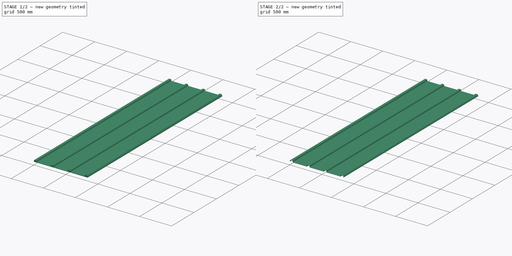
[diagram: build sequence overview — one tinted view per stage of 2, left to right]
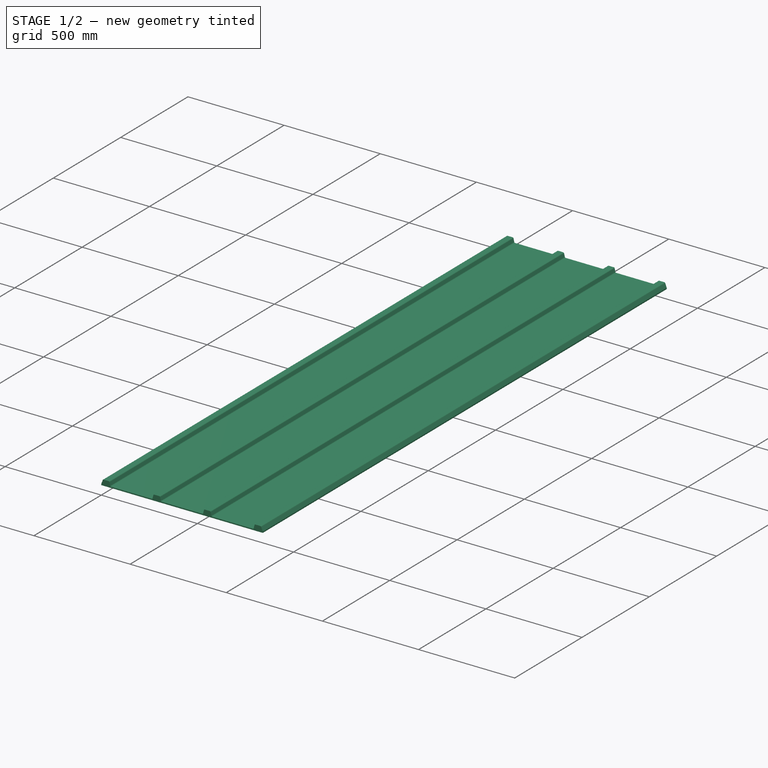
[diagram: stage 1 of 2 — iso view after this stage's code; geometry added in this stage tinted green]
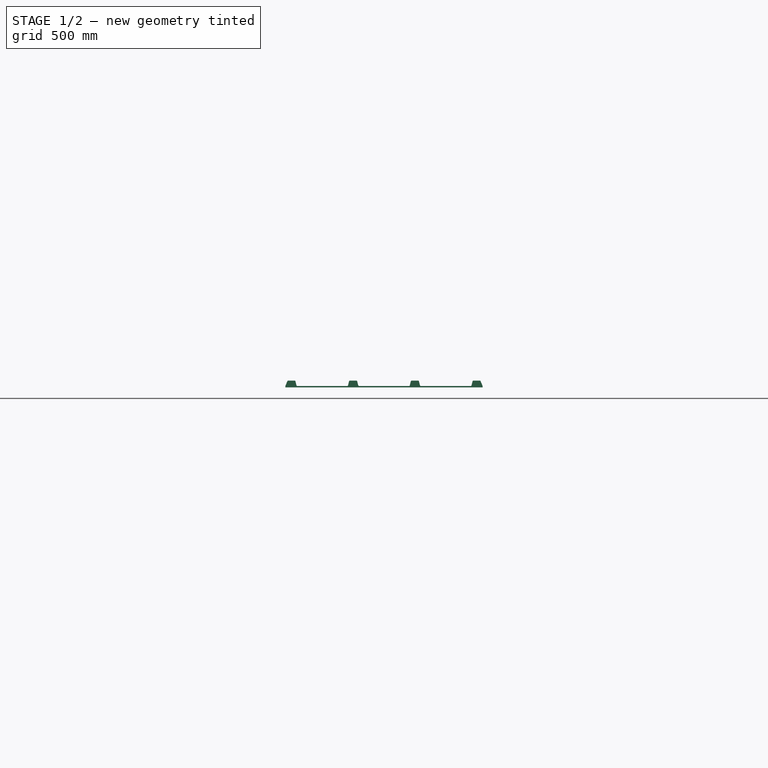
[diagram: stage 1 of 2 — front view after this stage's code; geometry added in this stage tinted green]
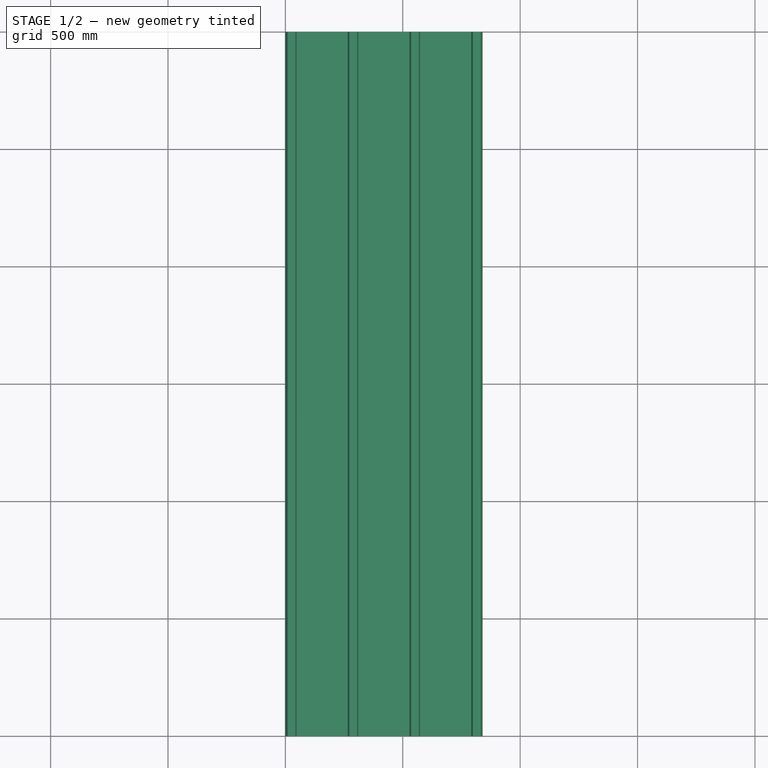
[diagram: stage 1 of 2 — top view after this stage's code; geometry added in this stage tinted green]
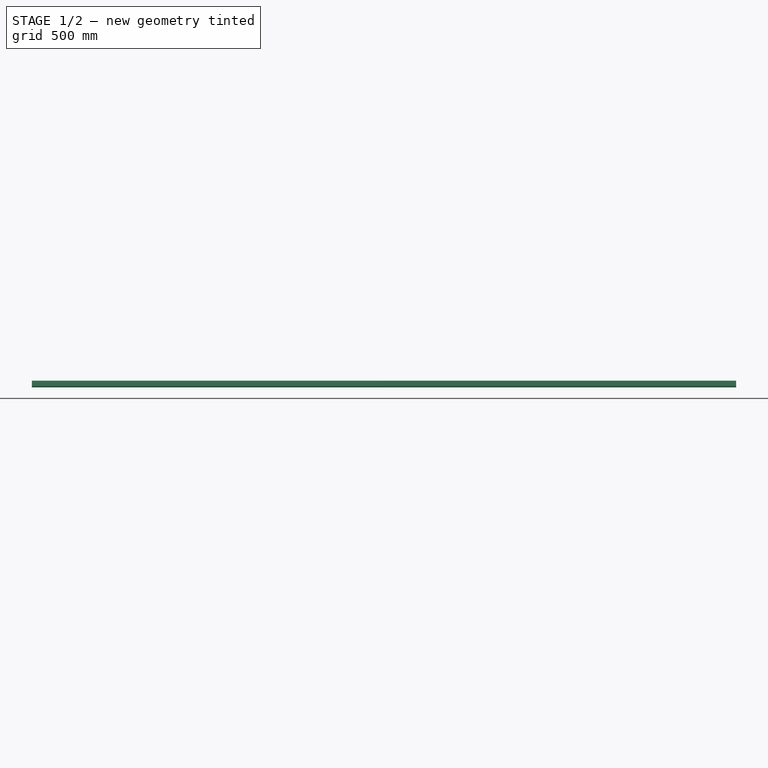
[diagram: stage 1 of 2 — right view after this stage's code; geometry added in this stage tinted green]
FCSTD DOCUMENT  (FreeCAD 0.15R4671 (Git))
Label: bac-acier
License: All rights reserved
LicenseURL: http://en.wikipedia.org/wiki/All_rights_reserved
objects: Sketcher::SketchObject×2, PartDesign::Pad×2, Part::Cut×1
note: 7 computed .brp shape members not serialized (recipe doc carries the construction recipe); baked Part::Feature solids carry a one-line shape summary decoded from their .brp

FEATURE [Sketcher::SketchObject] Sketch
  Placement = pos=(0,0,0) rot=(-1,0,0;4.71239rad)
  sketch-geometry (32):
    g0: LineSegment StartX=0 StartY=2 StartZ=0 EndX=8.29185 EndY=22.4999 EndZ=0
    g1: LineSegment StartX=12 StartY=25 StartZ=0 EndX=39 EndY=25 EndZ=0
    g2: LineSegment StartX=42.8804 StartY=21.971 StartZ=0 EndX=47.1196 EndY=5.02904 EndZ=0
    g3: LineSegment StartX=0 StartY=2 StartZ=0 EndX=0 EndY=-2 EndZ=0
    g4: ArcOfCircle CenterX=12 CenterY=21 CenterZ=0 NormalX=0 NormalY=0 NormalZ=1 Radius=4 StartAngle=1.5708 EndAngle=2.75723
    g5: ArcOfCircle CenterX=39 CenterY=21 CenterZ=0 NormalX=0 NormalY=0 NormalZ=1 Radius=4 StartAngle=0.245189 EndAngle=1.5708
    g6: LineSegment StartX=51 StartY=2 StartZ=0 EndX=263 EndY=2 EndZ=0
    g7: ArcOfCircle CenterX=51 CenterY=6 CenterZ=0 NormalX=0 NormalY=0 NormalZ=1 Radius=4 StartAngle=3.38678 EndAngle=4.71239
    g8: LineSegment StartX=266.88 StartY=5.02904 StartZ=0 EndX=271.12 EndY=21.971 EndZ=0
    g9: LineSegment StartX=275 StartY=25 StartZ=0 EndX=302 EndY=25 EndZ=0
    g10: LineSegment StartX=305.88 StartY=21.971 StartZ=0 EndX=310.12 EndY=5.02904 EndZ=0
    g11: LineSegment StartX=314 StartY=2 StartZ=0 EndX=526 EndY=2 EndZ=0
    g12: ArcOfCircle CenterX=263 CenterY=6 CenterZ=0 NormalX=0 NormalY=0 NormalZ=1 Radius=4 StartAngle=4.71239 EndAngle=6.038
    g13: ArcOfCircle CenterX=275 CenterY=21 CenterZ=0 NormalX=0 NormalY=0 NormalZ=1 Radius=4 StartAngle=1.5708 EndAngle=2.8964
    g14: ArcOfCircle CenterX=302 CenterY=21 CenterZ=0 NormalX=0 NormalY=0 NormalZ=1 Radius=4 StartAngle=0.245189 EndAngle=1.5708
    g15: ArcOfCircle CenterX=314 CenterY=6 CenterZ=0 NormalX=0 NormalY=0 NormalZ=1 Radius=4 StartAngle=3.38678 EndAngle=4.71239
    g16: LineSegment StartX=529.88 StartY=5.02904 StartZ=0 EndX=534.12 EndY=21.971 EndZ=0
    g17: LineSegment StartX=538 StartY=25 StartZ=0 EndX=565 EndY=25 EndZ=0
    g18: LineSegment StartX=568.88 StartY=21.971 StartZ=0 EndX=573.12 EndY=5.02904 EndZ=0
    g19: LineSegment StartX=577 StartY=2 StartZ=0 EndX=789 EndY=2 EndZ=0
    g20: ArcOfCircle CenterX=526 CenterY=6 CenterZ=0 NormalX=0 NormalY=0 NormalZ=1 Radius=4 StartAngle=4.71239 EndAngle=6.038
    g21: ArcOfCircle CenterX=538 CenterY=21 CenterZ=0 NormalX=0 NormalY=0 NormalZ=1 Radius=4 StartAngle=1.5708 EndAngle=2.8964
    g22: ArcOfCircle CenterX=565 CenterY=21 CenterZ=0 NormalX=0 NormalY=0 NormalZ=1 Radius=4 StartAngle=0.245189 EndAngle=1.5708
    g23: ArcOfCircle CenterX=577 CenterY=6 CenterZ=0 NormalX=0 NormalY=0 NormalZ=1 Radius=4 StartAngle=3.38678 EndAngle=4.71239
    g24: LineSegment StartX=792.88 StartY=5.02904 StartZ=0 EndX=797.12 EndY=21.971 EndZ=0
    g25: LineSegment StartX=801 StartY=25 StartZ=0 EndX=828 EndY=25 EndZ=0
    g26: LineSegment StartX=831.708 StartY=22.4999 StartZ=0 EndX=840 EndY=2 EndZ=0
    g27: ArcOfCircle CenterX=828 CenterY=21 CenterZ=0 NormalX=0 NormalY=0 NormalZ=1 Radius=4 StartAngle=0.384365 EndAngle=1.5708
    g28: ArcOfCircle CenterX=801 CenterY=21 CenterZ=0 NormalX=0 NormalY=0 NormalZ=1 Radius=4 StartAngle=1.5708 EndAngle=2.8964
    g29: ArcOfCircle CenterX=789 CenterY=6 CenterZ=0 NormalX=0 NormalY=0 NormalZ=1 Radius=4 StartAngle=4.71239 EndAngle=6.038
    g30: LineSegment StartX=840 StartY=2 StartZ=0 EndX=840 EndY=-2 EndZ=0
    g31: LineSegment StartX=840 StartY=-2 StartZ=0 EndX=0 EndY=-2 EndZ=0
  constraints (82):
    c: PointOnObject(g0,g-2)
    c: Horizontal(g1)
    c: Coincident(g3,g0)
    c: Vertical(g3)
    c: DistanceY(g-1,g0) = 2
    c: Tangent(g0,g4) = 1.5708
    c: Tangent(g1,g4) = 1.5708
    c: Radius(g4) = 4
    c: Tangent(g1,g5) = 1.5708
    c: Tangent(g2,g5) = 1.5708
    c: Equal(g4,g5)
    c: DistanceX(g0,g4) = 12
    c: Horizontal(g6)
    c: Tangent(g2,g7) = -1.5708
    c: Tangent(g6,g7) = -1.5708
    c: Equal(g7,g4)
    c: DistanceX(g5,g7) = 12
    c: DistanceX(g4,g5) = 27
    c: DistanceY(g-1,g4) = 21
    c: DistanceY(g-1,g7) = 6
    c: Horizontal(g9)
    c: Horizontal(g11)
    c: Tangent(g6,g12) = -1.5708
    c: Tangent(g8,g12) = -1.5708
    c: Tangent(g8,g13) = 1.5708
    c: Tangent(g9,g13) = 1.5708
    c: Tangent(g9,g14) = 1.5708
    c: Tangent(g10,g14) = 1.5708
    c: Tangent(g10,g15) = -1.5708
    c: Tangent(g11,g15) = -1.5708
    c: Equal(g12,g13)
    c: Equal(g13,g14)
    c: Equal(g14,g15)
    c: Equal(g15,g4)
    c: DistanceX(g12,g13) = 12
    c: DistanceX(g14,g15) = 12
    c: DistanceX(g13,g14) = 27
    c: DistanceY(g-1,g13) = 21
    c: DistanceY(g-1,g15) = 6
    c: DistanceX(g7,g12) = 212
    c: Horizontal(g17)
    c: Horizontal(g19)
    c: Tangent(g11,g20) = -1.5708
    c: Tangent(g16,g20) = -1.5708
    c: Tangent(g16,g21) = 1.5708
    c: Tangent(g17,g21) = 1.5708
    c: Tangent(g17,g22) = 1.5708
    c: Tangent(g18,g22) = 1.5708
    c: Tangent(g18,g23) = -1.5708
    c: Tangent(g19,g23) = -1.5708
    c: Equal(g20,g21)
    c: Equal(g21,g22)
    c: Equal(g22,g23)
    c: Equal(g23,g4)
    c: DistanceX(g15,g20) = 212
    c: DistanceX(g20,g21) = 12
    c: DistanceX(g22,g23) = 12
    c: DistanceY(g-1,g21) = 21
    c: DistanceY(g-1,g23) = 6
    c: DistanceX(g21,g22) = 27
    c: Horizontal(g25)
    c: Tangent(g25,g27) = 1.5708
    c: Tangent(g26,g27) = 1.5708
    c: Tangent(g24,g28) = 1.5708
    c: Tangent(g25,g28) = 1.5708
    c: Tangent(g19,g29) = -1.5708
    c: Tangent(g24,g29) = -1.5708
    c: Equal(g28,g27)
    c: Equal(g27,g29)
    c: Equal(g29,g4)
    c: DistanceX(g23,g29) = 212
    c: DistanceY(g-1,g28) = 21
    c: DistanceX(g28,g29) = -12
    c: DistanceX(g28,g27) = 27
    c: DistanceY(g-1,g26) = 2
    c: Vertical(g30)
    c: Coincident(g26,g30)
    c: Coincident(g31,g3)
    c: Horizontal(g31)
    c: DistanceY(g3,g0) = 4
    c: Coincident(g30,g31)
    c: DistanceX(g27,g26) = 12
FEATURE [PartDesign::Pad] Pad
  Length = 3000
  Length2 = 100
  Placement = pos=(0,0,0) rot=(-1,0,0;4.71239rad)
  Sketch = -> Sketch
  Type = 0
FEATURE [Sketcher::SketchObject] Sketch001
  Placement = pos=(0,0,-2) rot=(1,0,0;1.5708rad)
  sketch-geometry (32):
    g0: LineSegment StartX=0 StartY=2 StartZ=0 EndX=8.29185 EndY=22.4999 EndZ=0
    g1: LineSegment StartX=12 StartY=25 StartZ=0 EndX=39 EndY=25 EndZ=0
    g2: LineSegment StartX=42.8804 StartY=21.971 StartZ=0 EndX=47.1196 EndY=5.02904 EndZ=0
    g3: LineSegment StartX=0 StartY=2 StartZ=0 EndX=0 EndY=-2 EndZ=0
    g4: ArcOfCircle CenterX=12 CenterY=21 CenterZ=0 NormalX=0 NormalY=0 NormalZ=1 Radius=4 StartAngle=1.5708 EndAngle=2.75723
    g5: ArcOfCircle CenterX=39 CenterY=21 CenterZ=0 NormalX=0 NormalY=0 NormalZ=1 Radius=4 StartAngle=0.245189 EndAngle=1.5708
    g6: LineSegment StartX=51 StartY=2 StartZ=0 EndX=263 EndY=2 EndZ=0
    g7: ArcOfCircle CenterX=51 CenterY=6 CenterZ=0 NormalX=0 NormalY=0 NormalZ=1 Radius=4 StartAngle=3.38678 EndAngle=4.71239
    g8: LineSegment StartX=266.88 StartY=5.02904 StartZ=0 EndX=271.12 EndY=21.971 EndZ=0
    g9: LineSegment StartX=275 StartY=25 StartZ=0 EndX=302 EndY=25 EndZ=0
    g10: LineSegment StartX=305.88 StartY=21.971 StartZ=0 EndX=310.12 EndY=5.02904 EndZ=0
    g11: LineSegment StartX=314 StartY=2 StartZ=0 EndX=526 EndY=2 EndZ=0
    g12: ArcOfCircle CenterX=263 CenterY=6 CenterZ=0 NormalX=0 NormalY=0 NormalZ=1 Radius=4 StartAngle=4.71239 EndAngle=6.038
    g13: ArcOfCircle CenterX=275 CenterY=21 CenterZ=0 NormalX=0 NormalY=0 NormalZ=1 Radius=4 StartAngle=1.5708 EndAngle=2.8964
    g14: ArcOfCircle CenterX=302 CenterY=21 CenterZ=0 NormalX=0 NormalY=0 NormalZ=1 Radius=4 StartAngle=0.245189 EndAngle=1.5708
    g15: ArcOfCircle CenterX=314 CenterY=6 CenterZ=0 NormalX=0 NormalY=0 NormalZ=1 Radius=4 StartAngle=3.38678 EndAngle=4.71239
    g16: LineSegment StartX=529.88 StartY=5.02904 StartZ=0 EndX=534.12 EndY=21.971 EndZ=0
    g17: LineSegment StartX=538 StartY=25 StartZ=0 EndX=565 EndY=25 EndZ=0
    g18: LineSegment StartX=568.88 StartY=21.971 StartZ=0 EndX=573.12 EndY=5.02904 EndZ=0
    g19: LineSegment StartX=577 StartY=2 StartZ=0 EndX=789 EndY=2 EndZ=0
    g20: ArcOfCircle CenterX=526 CenterY=6 CenterZ=0 NormalX=0 NormalY=0 NormalZ=1 Radius=4 StartAngle=4.71239 EndAngle=6.038
    g21: ArcOfCircle CenterX=538 CenterY=21 CenterZ=0 NormalX=0 NormalY=0 NormalZ=1 Radius=4 StartAngle=1.5708 EndAngle=2.8964
    g22: ArcOfCircle CenterX=565 CenterY=21 CenterZ=0 NormalX=0 NormalY=0 NormalZ=1 Radius=4 StartAngle=0.245189 EndAngle=1.5708
    g23: ArcOfCircle CenterX=577 CenterY=6 CenterZ=0 NormalX=0 NormalY=0 NormalZ=1 Radius=4 StartAngle=3.38678 EndAngle=4.71239
    g24: LineSegment StartX=792.88 StartY=5.02904 StartZ=0 EndX=797.12 EndY=21.971 EndZ=0
    g25: LineSegment StartX=801 StartY=25 StartZ=0 EndX=828 EndY=25 EndZ=0
    g26: LineSegment StartX=831.708 StartY=22.4999 StartZ=0 EndX=840 EndY=2 EndZ=0
    g27: ArcOfCircle CenterX=828 CenterY=21 CenterZ=0 NormalX=0 NormalY=0 NormalZ=1 Radius=4 StartAngle=0.384365 EndAngle=1.5708
    g28: ArcOfCircle CenterX=801 CenterY=21 CenterZ=0 NormalX=0 NormalY=0 NormalZ=1 Radius=4 StartAngle=1.5708 EndAngle=2.8964
    g29: ArcOfCircle CenterX=789 CenterY=6 CenterZ=0 NormalX=0 NormalY=0 NormalZ=1 Radius=4 StartAngle=4.71239 EndAngle=6.038
    g30: LineSegment StartX=840 StartY=2 StartZ=0 EndX=840 EndY=-2 EndZ=0
    g31: LineSegment StartX=840 StartY=-2 StartZ=0 EndX=0 EndY=-2 EndZ=0
  constraints (82):
    c: PointOnObject(g0,g-2)
    c: Horizontal(g1)
    c: Coincident(g3,g0)
    c: Vertical(g3)
    c: DistanceY(g-1,g0) = 2
    c: Tangent(g0,g4) = 1.5708
    c: Tangent(g1,g4) = 1.5708
    c: Radius(g4) = 4
    c: Tangent(g1,g5) = 1.5708
    c: Tangent(g2,g5) = 1.5708
    c: Equal(g4,g5)
    c: DistanceX(g0,g4) = 12
    c: Horizontal(g6)
    c: Tangent(g2,g7) = -1.5708
    c: Tangent(g6,g7) = -1.5708
    c: Equal(g7,g4)
    c: DistanceX(g5,g7) = 12
    c: DistanceX(g4,g5) = 27
    c: DistanceY(g-1,g4) = 21
    c: DistanceY(g-1,g7) = 6
    c: Horizontal(g9)
    c: Horizontal(g11)
    c: Tangent(g6,g12) = -1.5708
    c: Tangent(g8,g12) = -1.5708
    c: Tangent(g8,g13) = 1.5708
    c: Tangent(g9,g13) = 1.5708
    c: Tangent(g9,g14) = 1.5708
    c: Tangent(g10,g14) = 1.5708
    c: Tangent(g10,g15) = -1.5708
    c: Tangent(g11,g15) = -1.5708
    c: Equal(g12,g13)
    c: Equal(g13,g14)
    c: Equal(g14,g15)
    c: Equal(g15,g4)
    c: DistanceX(g12,g13) = 12
    c: DistanceX(g14,g15) = 12
    c: DistanceX(g13,g14) = 27
    c: DistanceY(g-1,g13) = 21
    c: DistanceY(g-1,g15) = 6
    c: DistanceX(g7,g12) = 212
    c: Horizontal(g17)
    c: Horizontal(g19)
    c: Tangent(g11,g20) = -1.5708
    c: Tangent(g16,g20) = -1.5708
    c: Tangent(g16,g21) = 1.5708
    c: Tangent(g17,g21) = 1.5708
    c: Tangent(g17,g22) = 1.5708
    c: Tangent(g18,g22) = 1.5708
    c: Tangent(g18,g23) = -1.5708
    c: Tangent(g19,g23) = -1.5708
    c: Equal(g20,g21)
    c: Equal(g21,g22)
    c: Equal(g22,g23)
    c: Equal(g23,g4)
    c: DistanceX(g15,g20) = 212
    c: DistanceX(g20,g21) = 12
    c: DistanceX(g22,g23) = 12
    c: DistanceY(g-1,g21) = 21
    c: DistanceY(g-1,g23) = 6
    c: DistanceX(g21,g22) = 27
    c: Horizontal(g25)
    c: Tangent(g25,g27) = 1.5708
    c: Tangent(g26,g27) = 1.5708
    c: Tangent(g24,g28) = 1.5708
    c: Tangent(g25,g28) = 1.5708
    c: Tangent(g19,g29) = -1.5708
    c: Tangent(g24,g29) = -1.5708
    c: Equal(g28,g27)
    c: Equal(g27,g29)
    c: Equal(g29,g4)
    c: DistanceX(g23,g29) = 212
    c: DistanceY(g-1,g28) = 21
    c: DistanceX(g28,g29) = -12
    c: DistanceX(g28,g27) = 27
    c: DistanceY(g-1,g26) = 2
    c: Vertical(g30)
    c: Coincident(g26,g30)
    c: Coincident(g31,g3)
    c: Horizontal(g31)
    c: DistanceY(g3,g0) = 4
    c: Coincident(g30,g31)
    c: DistanceX(g27,g26) = 12
FEATURE [PartDesign::Pad] Pad001
  Length = 3000
  Length2 = 100
  Placement = pos=(0,0,-2) rot=(1,0,0;1.5708rad)
  Sketch = -> Sketch001
  Type = 0
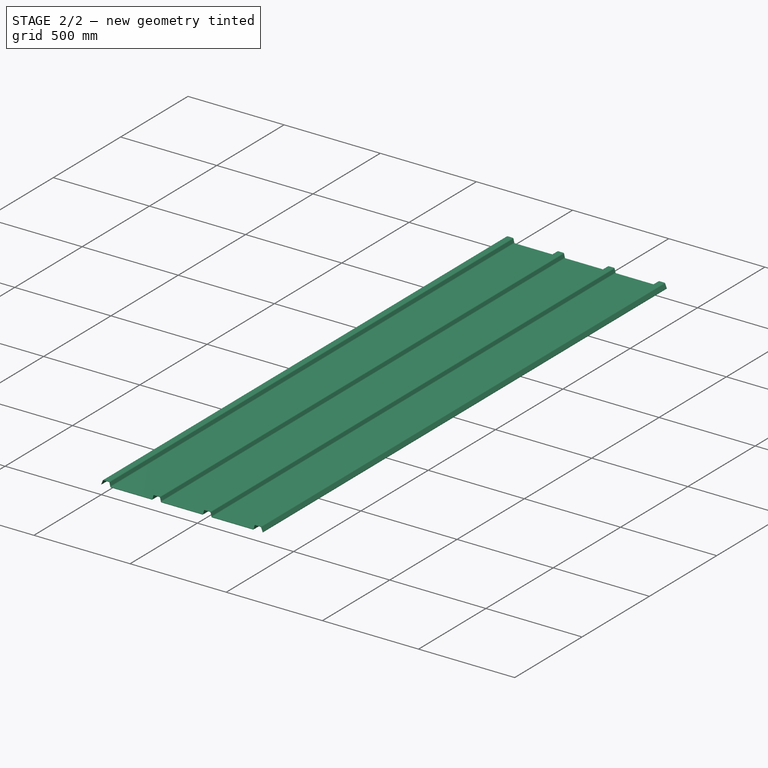
[diagram: stage 2 of 2 — iso view after this stage's code; geometry added in this stage tinted green]
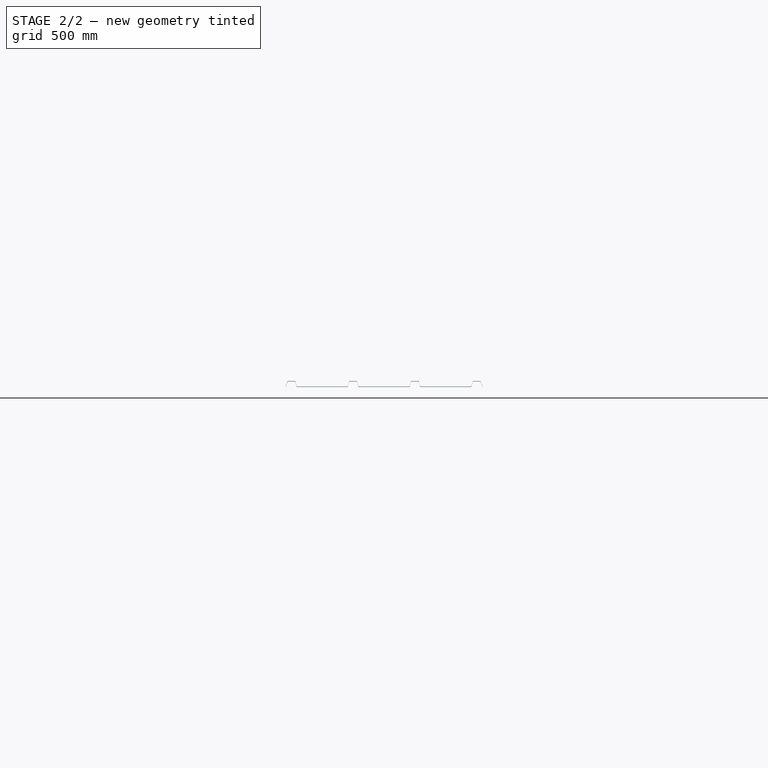
[diagram: stage 2 of 2 — front view after this stage's code; geometry added in this stage tinted green]
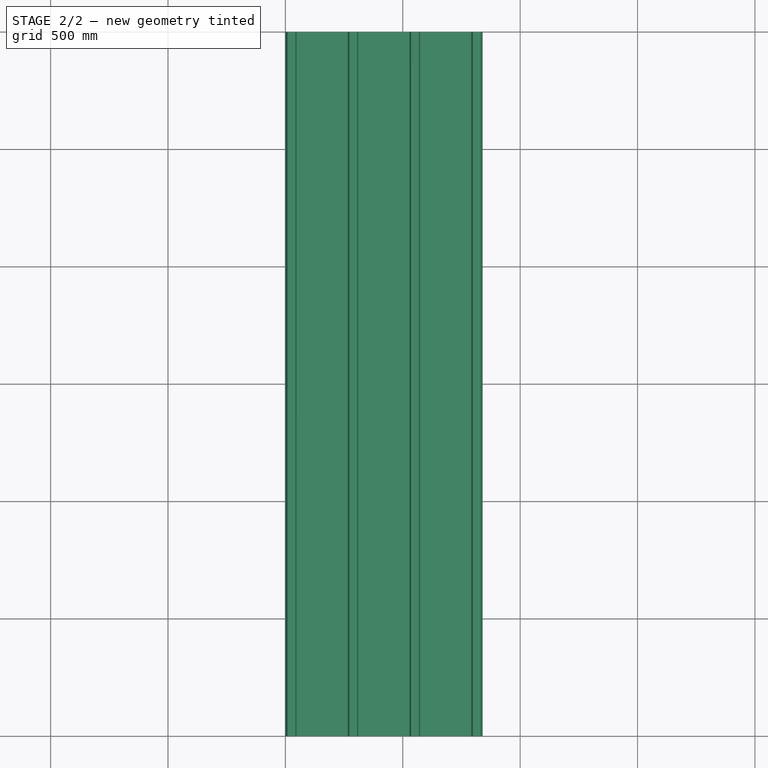
[diagram: stage 2 of 2 — top view after this stage's code; geometry added in this stage tinted green]
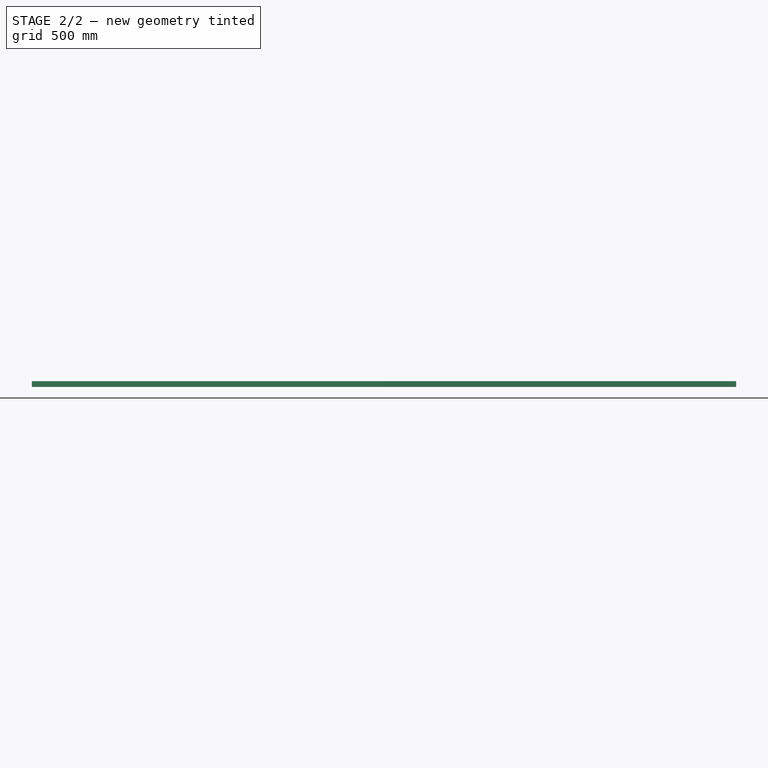
[diagram: stage 2 of 2 — right view after this stage's code; geometry added in this stage tinted green]
FEATURE [Part::Cut] Cut
  Base = -> Pad
  Tool = -> Pad001
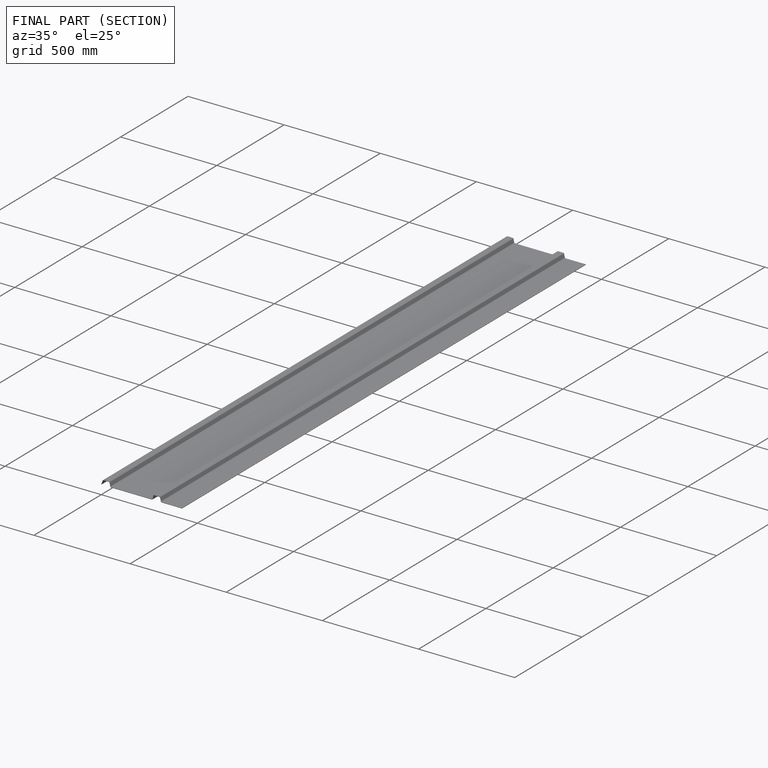
[diagram: finished part — half-section view (interior)]
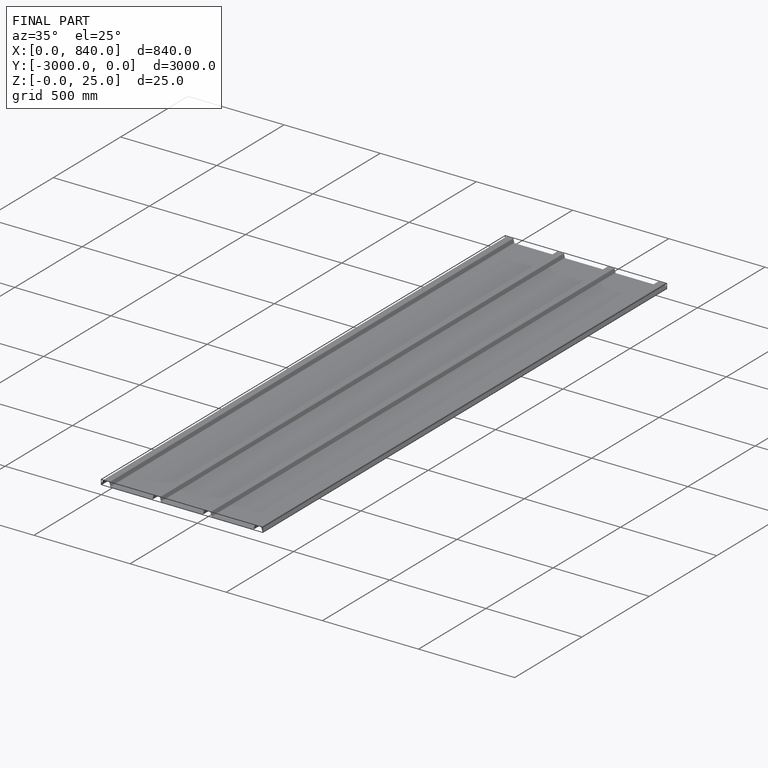
[diagram: finished part — iso view with bounding-box wireframe]
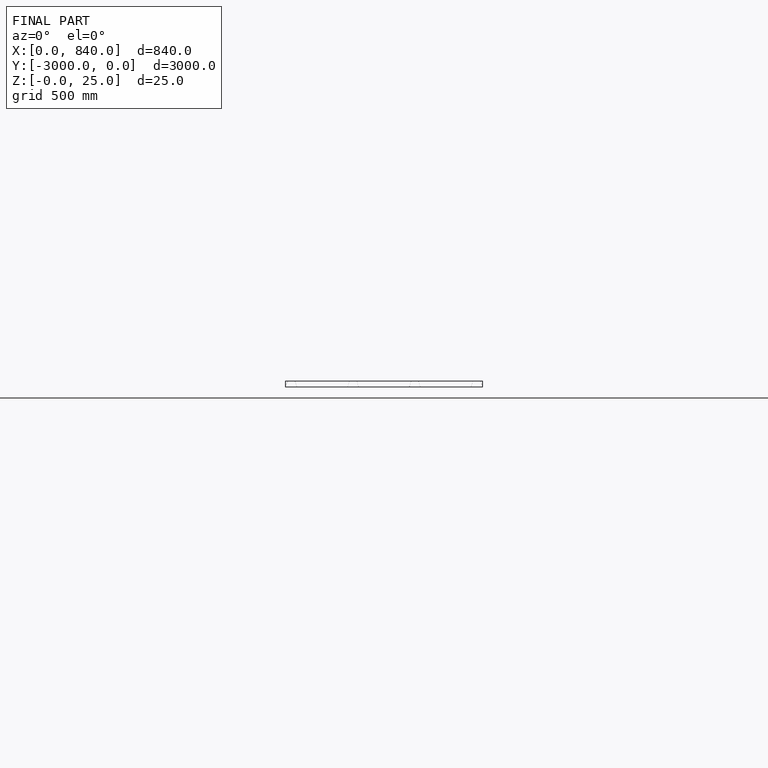
[diagram: finished part — front view with bounding-box wireframe]
